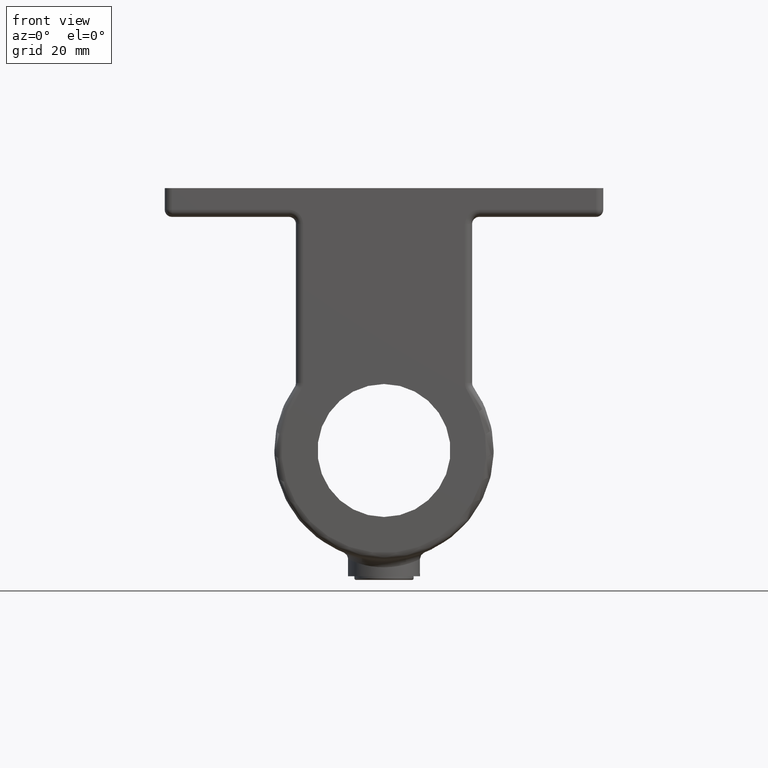
[diagram: clean part render]
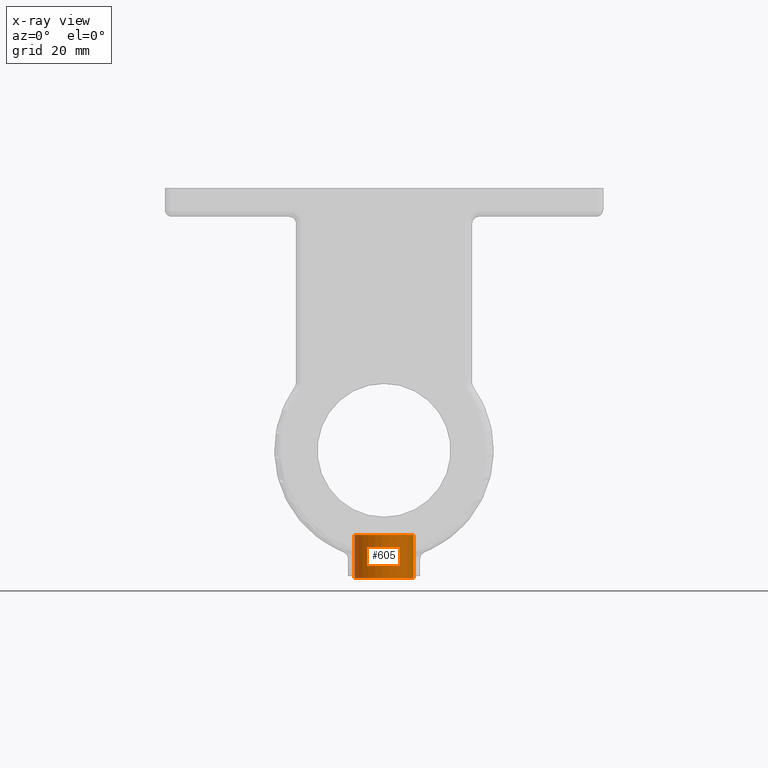
[diagram: x-ray — body ghosted, one internal face saturated and labeled with its STEP entity id]
A machine part, front view, then the same camera in x-ray: the body is ghosted and one INTERNAL B-rep face — a face not visible from any outside direction — is saturated and labeled: STEP entity #605.
In plain terms, the highlighted cylindrical surface (bore or boss wall) has radius 8.25 mm, axis along (0, 0, 1).
Its self-contained STEP definition (entity closure, byte-faithful):
#2 = CARTESIAN_POINT ( 'NONE',  ( 0.000000000000000000, 12.49999999999999645, 0.000000000000000000 ) ) ;
#65 = CIRCLE ( 'NONE', #261, 8.250000000000000000 ) ;
#142 = CARTESIAN_POINT ( 'NONE',  ( 0.000000000000000000, 0.5000000000000004441, 0.000000000000000000 ) ) ;
#261 = AXIS2_PLACEMENT_3D ( 'NONE', #2, #2686, #4958 ) ;
#270 = EDGE_LOOP ( 'NONE', ( #4555 ) ) ;
#362 = EDGE_CURVE ( 'NONE', #846, #846, #3909, .T. ) ;
#568 = DIRECTION ( 'NONE',  ( 0.000000000000000000, 0.000000000000000000, 1.000000000000000000 ) ) ;
#602 = CARTESIAN_POINT ( 'NONE',  ( 0.000000000000000000, 12.99999999999999822, 0.000000000000000000 ) ) ;
#605 = ADVANCED_FACE ( 'NONE', ( #4744, #1453 ), #3960, .T. ) ;
#846 = VERTEX_POINT ( 'NONE', #3199 ) ;
#1048 = AXIS2_PLACEMENT_3D ( 'NONE', #602, #4875, #2909 ) ;
#1453 = FACE_OUTER_BOUND ( 'NONE', #4776, .T. ) ;
#1545 = ORIENTED_EDGE ( 'NONE', *, *, #4354, .T. ) ;
#1995 = AXIS2_PLACEMENT_3D ( 'NONE', #142, #3211, #568 ) ;
#2686 = DIRECTION ( 'NONE',  ( -0.000000000000000000, -1.000000000000000000, -0.000000000000000000 ) ) ;
#2909 = DIRECTION ( 'NONE',  ( 0.000000000000000000, 0.000000000000000000, -1.000000000000000000 ) ) ;
#3199 = CARTESIAN_POINT ( 'NONE',  ( 0.000000000000000000, 0.5000000000000004441, 8.250000000000000000 ) ) ;
#3211 = DIRECTION ( 'NONE',  ( 0.000000000000000000, 1.000000000000000000, 0.000000000000000000 ) ) ;
#3242 = VERTEX_POINT ( 'NONE', #4409 ) ;
#3909 = CIRCLE ( 'NONE', #1995, 8.250000000000000000 ) ;
#3960 = CYLINDRICAL_SURFACE ( 'NONE', #1048, 8.250000000000000000 ) ;
#4354 = EDGE_CURVE ( 'NONE', #3242, #3242, #65, .T. ) ;
#4409 = CARTESIAN_POINT ( 'NONE',  ( 0.000000000000000000, 12.49999999999999645, 8.250000000000000000 ) ) ;
#4555 = ORIENTED_EDGE ( 'NONE', *, *, #362, .T. ) ;
#4744 = FACE_OUTER_BOUND ( 'NONE', #270, .T. ) ;
#4776 = EDGE_LOOP ( 'NONE', ( #1545 ) ) ;
#4875 = DIRECTION ( 'NONE',  ( 0.000000000000000000, -1.000000000000000000, 0.000000000000000000 ) ) ;
#4958 = DIRECTION ( 'NONE',  ( 0.000000000000000000, 0.000000000000000000, 1.000000000000000000 ) ) ;